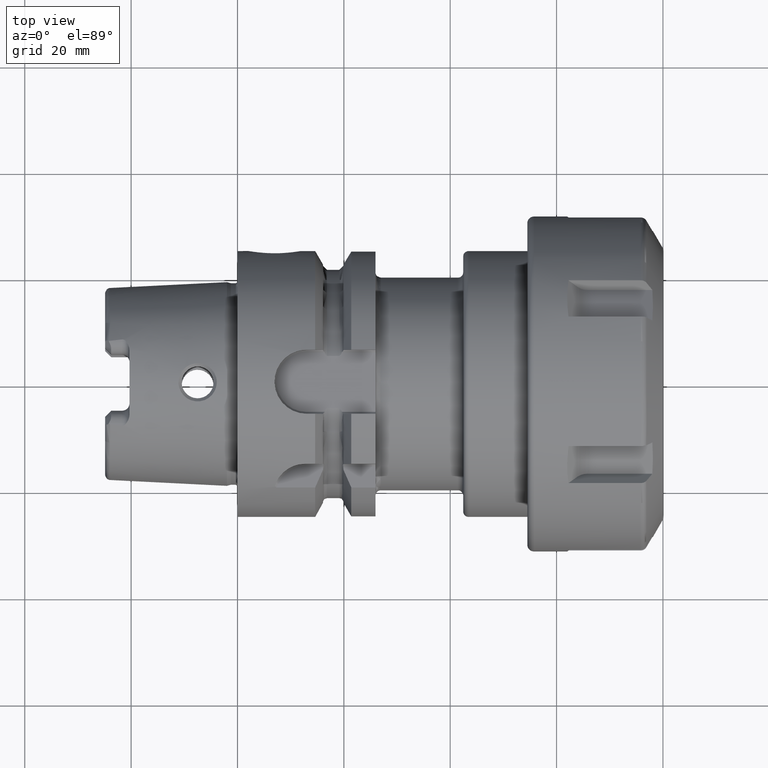
[diagram: clean part render]
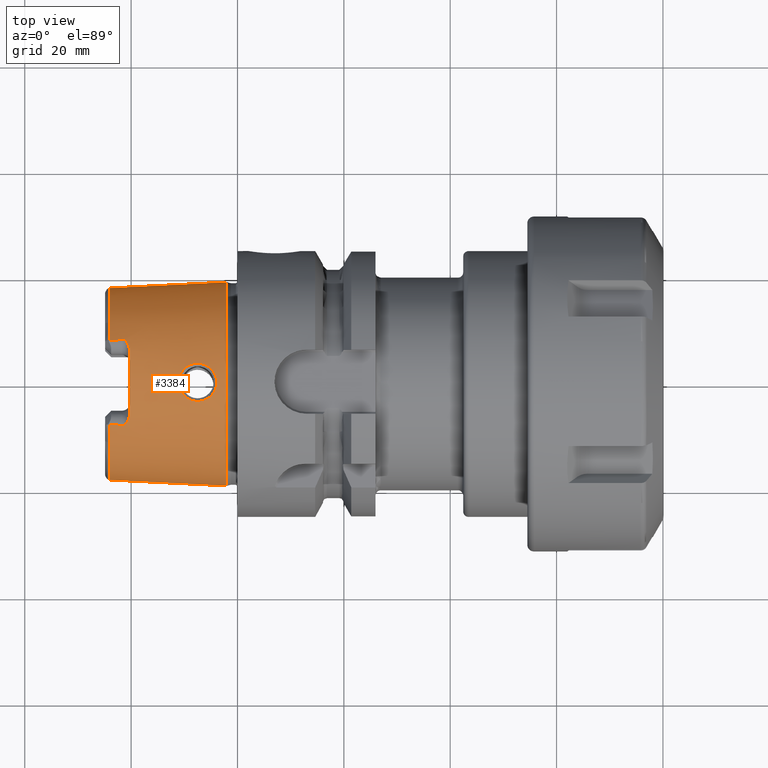
[diagram: same view with one face highlighted and labeled with its STEP entity id]
A machine part, top view. The second image highlights one B-rep face of the part: STEP entity #3384.
In plain terms, the highlighted conical surface has half-angle 2.868 deg.
Its self-contained STEP definition (entity closure, byte-faithful):
#2=CARTESIAN_POINT('',(-2.395003724237E1,-7.848512546022E0,1.626E1));
#3=CARTESIAN_POINT('',(-2.357924685714E1,-7.891247063705E0,1.626E1));
#4=CARTESIAN_POINT('',(-2.283344964494E1,-7.976635944030E0,1.626E1));
#5=CARTESIAN_POINT('',(-2.207922143332E1,-8.061880664518E0,1.626E1));
#6=CARTESIAN_POINT('',(-2.17E1,-8.104470797584E0,1.626E1));
#8=CARTESIAN_POINT('',(-2.03E1,0.E0,0.E0));
#9=DIRECTION('',(1.E0,0.E0,0.E0));
#10=DIRECTION('',(0.E0,3.252089046527E-1,9.456421988969E-1));
#11=AXIS2_PLACEMENT_3D('',#8,#9,#10);
#13=CARTESIAN_POINT('',(-2.17E1,8.104470797584E0,1.626E1));
#14=CARTESIAN_POINT('',(-2.207921342399E1,8.061881564041E0,1.626E1));
#15=CARTESIAN_POINT('',(-2.283343362880E1,7.976637765712E0,1.626E1));
#16=CARTESIAN_POINT('',(-2.357923885045E1,7.891247986496E0,1.626E1));
#17=CARTESIAN_POINT('',(-2.395003724237E1,7.848512546022E0,1.626E1));
#19=CARTESIAN_POINT('',(-2.E0,0.E0,0.E0));
#20=DIRECTION('',(1.E0,0.E0,0.E0));
#21=DIRECTION('',(0.E0,1.E0,0.E0));
#22=AXIS2_PLACEMENT_3D('',#19,#20,#21);
#24=CARTESIAN_POINT('',(-1.109929870960E1,-3.014221416256E-9,1.869887476944E1));
#25=CARTESIAN_POINT('',(-1.109945925242E1,1.886319535952E-1,1.869886672624E1));
#26=CARTESIAN_POINT('',(-1.107009168020E1,5.664763956957E-1,1.869480469033E1));
#27=CARTESIAN_POINT('',(-1.092852645341E1,1.148622081174E0,1.867514320096E1));
#28=CARTESIAN_POINT('',(-1.068761462296E1,1.704920402697E0,1.864430827966E1));
#29=CARTESIAN_POINT('',(-1.035800427398E1,2.210391705650E0,1.860721858945E1));
#30=CARTESIAN_POINT('',(-9.956571457299E0,2.646528342491E0,1.856998438485E1));
#31=CARTESIAN_POINT('',(-9.482180445587E0,3.015935220411E0,1.853715943967E1));
#32=CARTESIAN_POINT('',(-8.954999291132E0,3.300109899598E0,1.851503858938E1));
#33=CARTESIAN_POINT('',(-8.389140640557E0,3.493968846930E0,1.850796335816E1));
#34=CARTESIAN_POINT('',(-7.797320683708E0,3.593006921983E0,1.851902489885E1));
#35=CARTESIAN_POINT('',(-7.195102304437E0,3.593647232189E0,1.854964302437E1));
#36=CARTESIAN_POINT('',(-6.600491430740E0,3.495005174178E0,1.859898554839E1));
#37=CARTESIAN_POINT('',(-6.030596486868E0,3.299291684191E0,1.866403807124E1));
#38=CARTESIAN_POINT('',(-5.501482393751E0,3.011836541822E0,1.873990477193E1));
#39=CARTESIAN_POINT('',(-5.029104687073E0,2.639928583606E0,1.882027271501E1));
#40=CARTESIAN_POINT('',(-4.631634616367E0,2.203529810045E0,1.889690659120E1));
#41=CARTESIAN_POINT('',(-4.305482049942E0,1.697229296807E0,1.896603905152E1));
#42=CARTESIAN_POINT('',(-4.067927972751E0,1.141444662126E0,1.901987475357E1));
#43=CARTESIAN_POINT('',(-3.929055735054E0,5.612533791160E-1,1.905280029071E1));
#44=CARTESIAN_POINT('',(-3.900610911648E0,1.865123193107E-1,1.905953154444E1));
#45=CARTESIAN_POINT('',(-3.900703803433E0,4.688328467960E-10,1.905952689056E1));
#47=CARTESIAN_POINT('',(-3.900703803433E0,4.688328467960E-10,1.905952689056E1));
#48=CARTESIAN_POINT('',(-3.900565316566E0,-1.869068172543E-1,1.905953382875E1));
#49=CARTESIAN_POINT('',(-3.929209078756E0,-5.619643930347E-1,1.905275967237E1));
#50=CARTESIAN_POINT('',(-4.067587416071E0,-1.139939244924E0,1.901996042633E1));
#51=CARTESIAN_POINT('',(-4.304083353262E0,-1.694649477574E0,1.896633950966E1));
#52=CARTESIAN_POINT('',(-4.630377715431E0,-2.202039946174E0,1.889716591493E1));
#53=CARTESIAN_POINT('',(-5.030592742710E0,-2.641727212383E0,1.881996573115E1));
#54=CARTESIAN_POINT('',(-5.506115942833E0,-3.014998208087E0,1.873916244837E1));
#55=CARTESIAN_POINT('',(-6.036759347171E0,-3.302003787672E0,1.866323991975E1));
#56=CARTESIAN_POINT('',(-6.606224693834E0,-3.496380993107E0,1.859843104427E1));
#57=CARTESIAN_POINT('',(-7.200154597760E0,-3.594034785278E0,1.854930943768E1));
#58=CARTESIAN_POINT('',(-7.802229994140E0,-3.592594248023E0,1.851885498035E1));
#59=CARTESIAN_POINT('',(-8.394131860627E0,-3.492723564974E0,1.850794649148E1));
#60=CARTESIAN_POINT('',(-8.959854335096E0,-3.297955703516E0,1.851517847778E1));
#61=CARTESIAN_POINT('',(-9.485898814950E0,-3.013450655427E0,1.853737508929E1));
#62=CARTESIAN_POINT('',(-9.958289131427E0,-2.644672127726E0,1.857015107163E1));
#63=CARTESIAN_POINT('',(-1.035781579914E1,-2.210534337623E0,1.860719549656E1));
#64=CARTESIAN_POINT('',(-1.068684091883E1,-1.706221052324E0,1.864422260745E1));
#65=CARTESIAN_POINT('',(-1.092821591145E1,-1.149779213026E0,1.867509790374E1));
#66=CARTESIAN_POINT('',(-1.107015122039E1,-5.663437022187E-1,1.869481438399E1));
#67=CARTESIAN_POINT('',(-1.109940105467E1,-1.885312797170E-1,1.869886964195E1));
#68=CARTESIAN_POINT('',(-1.109929870960E1,-3.014221416256E-9,1.869887476944E1));
#254=CARTESIAN_POINT('',(-2.088194182380E1,7.65E0,1.652387464585E1));
#255=CARTESIAN_POINT('',(-2.078252967156E1,7.507241224245E0,1.659545558861E1));
#256=CARTESIAN_POINT('',(-2.061118229026E1,7.217898198343E0,1.673432166657E1));
#257=CARTESIAN_POINT('',(-2.042453343151E1,6.765088338183E0,1.693246351741E1));
#258=CARTESIAN_POINT('',(-2.032087894102E1,6.330896569896E0,1.710473583165E1));
#259=CARTESIAN_POINT('',(-2.03E1,6.061283482817E0,1.720184088309E1));
#260=CARTESIAN_POINT('',(-2.03E1,5.931150246788E0,1.724659405422E1));
#317=CARTESIAN_POINT('',(-2.395003724237E1,0.E0,0.E0));
#318=DIRECTION('',(1.E0,0.E0,0.E0));
#319=DIRECTION('',(0.E0,1.E0,0.E0));
#320=AXIS2_PLACEMENT_3D('',#317,#318,#319);
#391=CARTESIAN_POINT('',(-2.395003724237E1,0.E0,0.E0));
#392=DIRECTION('',(1.E0,0.E0,0.E0));
#393=DIRECTION('',(0.E0,-4.346977410045E-1,9.005764120637E-1));
#394=AXIS2_PLACEMENT_3D('',#391,#392,#393);
#557=DIRECTION('',(-9.987473526255E-1,5.003724236654E-2,0.E0));
#558=VECTOR('',#557,2.197756738445E1);
#559=CARTESIAN_POINT('',(-2.E0,-1.91548E1,0.E0));
#560=LINE('',#559,#558);
#566=DIRECTION('',(-9.987473526255E-1,-5.003724236654E-2,0.E0));
#567=VECTOR('',#566,2.197756738445E1);
#568=CARTESIAN_POINT('',(-2.E0,1.91548E1,0.E0));
#569=LINE('',#568,#567);
#2720=CARTESIAN_POINT('',(-2.03E1,-5.931150246788E0,1.724659405422E1));
#2721=CARTESIAN_POINT('',(-2.03E1,-6.061334007092E0,1.720182350766E1));
#2722=CARTESIAN_POINT('',(-2.032090311364E1,-6.331072330559E0,
1.710467013439E1));
#2723=CARTESIAN_POINT('',(-2.042460969072E1,-6.765396673643E0,
1.693234067442E1));
#2724=CARTESIAN_POINT('',(-2.061156183678E1,-7.218659036027E0,
1.673397288432E1));
#2725=CARTESIAN_POINT('',(-2.078273524221E1,-7.507536429743E0,
1.659530756908E1));
#2726=CARTESIAN_POINT('',(-2.088194182380E1,-7.65E0,1.652387464585E1));
#2798=CARTESIAN_POINT('',(-2.088194182380E1,-7.65E0,1.652387464585E1));
#2799=CARTESIAN_POINT('',(-2.092084236684E1,-7.705862324432E0,
1.649586461405E1));
#2800=CARTESIAN_POINT('',(-2.100216211286E1,-7.807981545915E0,
1.644339247740E1));
#2801=CARTESIAN_POINT('',(-2.113409150154E1,-7.931926358997E0,
1.637652980081E1));
#2802=CARTESIAN_POINT('',(-2.127636416926E1,-8.025677176369E0,
1.632276786529E1));
#2803=CARTESIAN_POINT('',(-2.142000730447E1,-8.084211699040E0,
1.628576763274E1));
#2804=CARTESIAN_POINT('',(-2.155951099500E1,-8.110794838366E0,
1.626471314411E1));
#2805=CARTESIAN_POINT('',(-2.165342169015E1,-8.109701979792E0,1.626E1));
#2806=CARTESIAN_POINT('',(-2.17E1,-8.104470797584E0,1.626E1));
#2816=CARTESIAN_POINT('',(-2.17E1,8.104470797584E0,1.626E1));
#2817=CARTESIAN_POINT('',(-2.164341871280E1,8.110825408214E0,1.626E1));
#2818=CARTESIAN_POINT('',(-2.152922643185E1,8.110130493423E0,1.626674474105E1));
#2819=CARTESIAN_POINT('',(-2.135380007883E1,8.063783507483E0,1.629963066121E1));
#2820=CARTESIAN_POINT('',(-2.118690630545E1,7.973411379162E0,1.635344174223E1));
#2821=CARTESIAN_POINT('',(-2.102599266022E1,7.836188133821E0,1.642872288676E1));
#2822=CARTESIAN_POINT('',(-2.092846952965E1,7.716815154647E0,1.649037273512E1));
#2823=CARTESIAN_POINT('',(-2.088194182380E1,7.65E0,1.652387464585E1));
#2841=CARTESIAN_POINT('',(-2.E0,1.91548E1,0.E0));
#2842=CARTESIAN_POINT('',(-2.E0,-1.91548E1,0.E0));
#2843=VERTEX_POINT('',#2841);
#2844=VERTEX_POINT('',#2842);
#2845=CARTESIAN_POINT('',(-2.395003724237E1,1.805510313416E1,0.E0));
#2846=VERTEX_POINT('',#2845);
#2847=CARTESIAN_POINT('',(-2.395003724237E1,-1.805510313416E1,0.E0));
#2848=VERTEX_POINT('',#2847);
#2861=CARTESIAN_POINT('',(-2.395003724237E1,7.848512546022E0,1.626E1));
#2862=VERTEX_POINT('',#2861);
#2863=CARTESIAN_POINT('',(-2.395003724237E1,-7.848512546022E0,1.626E1));
#2864=VERTEX_POINT('',#2863);
#2877=CARTESIAN_POINT('',(-2.03E1,5.931150246788E0,1.724659405422E1));
#2878=VERTEX_POINT('',#2877);
#2881=CARTESIAN_POINT('',(-2.17E1,8.104470797584E0,1.626E1));
#2882=VERTEX_POINT('',#2881);
#2883=CARTESIAN_POINT('',(-2.03E1,-5.931150246788E0,1.724659405422E1));
#2884=VERTEX_POINT('',#2883);
#2887=CARTESIAN_POINT('',(-2.17E1,-8.104470797584E0,1.626E1));
#2888=VERTEX_POINT('',#2887);
#2889=VERTEX_POINT('',#2823);
#2890=VERTEX_POINT('',#2798);
#3175=VERTEX_POINT('',#24);
#3176=VERTEX_POINT('',#45);
#3347=CARTESIAN_POINT('',(-1.297501862118E1,0.E0,0.E0));
#3348=DIRECTION('',(1.E0,0.E0,0.E0));
#3349=DIRECTION('',(0.E0,-1.E0,0.E0));
#3350=AXIS2_PLACEMENT_3D('',#3347,#3348,#3349);
#3351=CONICAL_SURFACE('',#3350,1.860495156708E1,2.868120487315E0);
#3353=ORIENTED_EDGE('',*,*,#3352,.T.);
#3355=ORIENTED_EDGE('',*,*,#3354,.F.);
#3357=ORIENTED_EDGE('',*,*,#3356,.F.);
#3359=ORIENTED_EDGE('',*,*,#3358,.F.);
#3361=ORIENTED_EDGE('',*,*,#3360,.F.);
#3363=ORIENTED_EDGE('',*,*,#3362,.F.);
#3365=ORIENTED_EDGE('',*,*,#3364,.T.);
#3367=ORIENTED_EDGE('',*,*,#3366,.F.);
#3369=ORIENTED_EDGE('',*,*,#3368,.F.);
#3371=ORIENTED_EDGE('',*,*,#3370,.T.);
#3373=ORIENTED_EDGE('',*,*,#3372,.T.);
#3375=ORIENTED_EDGE('',*,*,#3374,.F.);
#3376=EDGE_LOOP('',(#3353,#3355,#3357,#3359,#3361,#3363,#3365,#3367,#3369,#3371,
#3373,#3375));
#3377=FACE_OUTER_BOUND('',#3376,.F.);
#3379=ORIENTED_EDGE('',*,*,#3378,.F.);
#3381=ORIENTED_EDGE('',*,*,#3380,.F.);
#3382=EDGE_LOOP('',(#3379,#3381));
#3383=FACE_BOUND('',#3382,.F.);
#3384=ADVANCED_FACE('',(#3377,#3383),#3351,.T.);
#7=B_SPLINE_CURVE_WITH_KNOTS('',3,(#2,#3,#4,#5,#6),.UNSPECIFIED.,.F.,.F.,(4,1,
4),(0.E0,5.E-1,1.E0),.UNSPECIFIED.);
#12=CIRCLE('',#11,1.823797E1);
#18=B_SPLINE_CURVE_WITH_KNOTS('',3,(#13,#14,#15,#16,#17),.UNSPECIFIED.,.F.,.F.,(
4,1,4),(0.E0,5.E-1,1.E0),.UNSPECIFIED.);
#23=CIRCLE('',#22,1.91548E1);
#46=B_SPLINE_CURVE_WITH_KNOTS('',3,(#24,#25,#26,#27,#28,#29,#30,#31,#32,#33,#34,
#35,#36,#37,#38,#39,#40,#41,#42,#43,#44,#45),.UNSPECIFIED.,.F.,.F.,(4,1,1,1,1,1,
1,1,1,1,1,1,1,1,1,1,1,1,1,4),(0.E0,5.263157894737E-2,1.052631578947E-1,
1.578947368421E-1,2.105263157895E-1,2.631578947368E-1,3.157894736842E-1,
3.684210526316E-1,4.210526315789E-1,4.736842105263E-1,5.263157894737E-1,
5.789473684211E-1,6.315789473684E-1,6.842105263158E-1,7.368421052632E-1,
7.894736842105E-1,8.421052631579E-1,8.947368421053E-1,9.473684210526E-1,1.E0),
.UNSPECIFIED.);
#69=B_SPLINE_CURVE_WITH_KNOTS('',3,(#47,#48,#49,#50,#51,#52,#53,#54,#55,#56,#57,
#58,#59,#60,#61,#62,#63,#64,#65,#66,#67,#68),.UNSPECIFIED.,.F.,.F.,(4,1,1,1,1,1,
1,1,1,1,1,1,1,1,1,1,1,1,1,4),(0.E0,5.263157894737E-2,1.052631578947E-1,
1.578947368421E-1,2.105263157895E-1,2.631578947368E-1,3.157894736842E-1,
3.684210526316E-1,4.210526315789E-1,4.736842105263E-1,5.263157894737E-1,
5.789473684211E-1,6.315789473684E-1,6.842105263158E-1,7.368421052632E-1,
7.894736842105E-1,8.421052631579E-1,8.947368421053E-1,9.473684210526E-1,1.E0),
.UNSPECIFIED.);
#261=B_SPLINE_CURVE_WITH_KNOTS('',3,(#254,#255,#256,#257,#258,#259,#260),
.UNSPECIFIED.,.F.,.F.,(4,1,1,1,4),(0.E0,2.5E-1,5.E-1,7.5E-1,1.E0),
.UNSPECIFIED.);
#321=CIRCLE('',#320,1.805510313416E1);
#395=CIRCLE('',#394,1.805510313416E1);
#2727=B_SPLINE_CURVE_WITH_KNOTS('',3,(#2720,#2721,#2722,#2723,#2724,#2725,
#2726),.UNSPECIFIED.,.F.,.F.,(4,1,1,1,4),(0.E0,2.5E-1,5.E-1,7.5E-1,1.E0),
.UNSPECIFIED.);
#2807=B_SPLINE_CURVE_WITH_KNOTS('',3,(#2798,#2799,#2800,#2801,#2802,#2803,#2804,
#2805,#2806),.UNSPECIFIED.,.F.,.F.,(4,1,1,1,1,1,4),(0.E0,1.666666666667E-1,
3.333333333333E-1,5.E-1,6.666666666667E-1,8.333333333333E-1,1.E0),
.UNSPECIFIED.);
#2824=B_SPLINE_CURVE_WITH_KNOTS('',3,(#2816,#2817,#2818,#2819,#2820,#2821,#2822,
#2823),.UNSPECIFIED.,.F.,.F.,(4,1,1,1,1,4),(0.E0,2.E-1,4.E-1,6.E-1,8.E-1,1.E0),
.UNSPECIFIED.);
#3352=EDGE_CURVE('',#2864,#2888,#7,.T.);
#3354=EDGE_CURVE('',#2890,#2888,#2807,.T.);
#3356=EDGE_CURVE('',#2884,#2890,#2727,.T.);
#3358=EDGE_CURVE('',#2878,#2884,#12,.T.);
#3360=EDGE_CURVE('',#2889,#2878,#261,.T.);
#3362=EDGE_CURVE('',#2882,#2889,#2824,.T.);
#3364=EDGE_CURVE('',#2882,#2862,#18,.T.);
#3366=EDGE_CURVE('',#2846,#2862,#321,.T.);
#3368=EDGE_CURVE('',#2843,#2846,#569,.T.);
#3370=EDGE_CURVE('',#2843,#2844,#23,.T.);
#3372=EDGE_CURVE('',#2844,#2848,#560,.T.);
#3374=EDGE_CURVE('',#2864,#2848,#395,.T.);
#3378=EDGE_CURVE('',#3175,#3176,#46,.T.);
#3380=EDGE_CURVE('',#3176,#3175,#69,.T.);